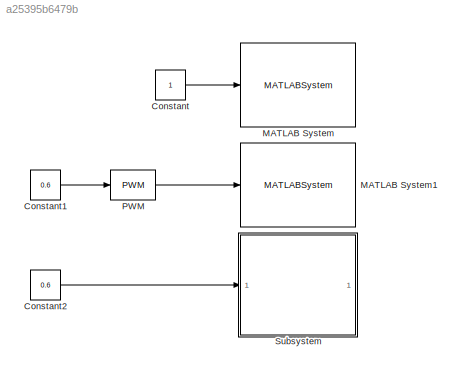
MODEL slx_a25395b6479b
KIND model
CONFIG AbsTol = auto
CONFIG EnableMultiTasking = off
CONFIG FixedStep = auto
CONFIG MaxStep = auto
CONFIG MinStep = auto
CONFIG RelTol = 1e-3
CONFIG SampleTimeConstraint = Unconstrained
CONFIG SolverName = FixedStepAuto
CONFIG StartTime = 0.0
CONFIG StopTime = inf
BLOCK [Constant] Constant
BLOCK [Constant] Constant1
  Value = 0.6
BLOCK [Constant] Constant2
  Value = 0.6
BLOCK [MATLABSystem] MATLAB System
  MaskDisplay = disp('GPIO_Write');\nport_label('input',1,'u');
  MaskType = GPIO_Write
  System = GPIO_Write
  gpioPin = 428
  pinDirection = 1
BLOCK [MATLABSystem] MATLAB System1
  MaskDisplay = disp('GPIO_Write');\nport_label('input',1,'u');
  MaskType = GPIO_Write
  System = GPIO_Write
  gpioPin = 445
  pinDirection = 1
BLOCK [Reference] PWM  REF=simulink/Discontinuities/PWM
  DisableCoverage = on
  SourceBlock = simulink/Discontinuities/PWM
  SourceType = PWM
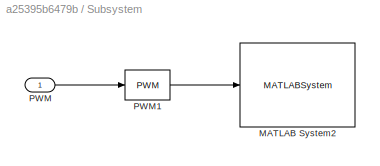
BLOCK [SubSystem] Subsystem
BLOCK [MATLABSystem] Subsystem/MATLAB System2
  MaskDisplay = disp('GPIO_Write');\nport_label('input',1,'u');
  MaskType = GPIO_Write
  System = GPIO_Write
  gpioPin = 480
  pinDirection = 1
BLOCK [Inport] Subsystem/PWM
BLOCK [Reference] Subsystem/PWM1  REF=simulink/Discontinuities/PWM
  DisableCoverage = on
  SourceBlock = simulink/Discontinuities/PWM
  SourceType = PWM
LINE Constant1:1 -> PWM:1
LINE Constant2:1 -> Subsystem:1
LINE Constant:1 -> MATLAB System:1
LINE PWM:1 -> MATLAB System1:1
LINE Subsystem/PWM1:1 -> Subsystem/MATLAB System2:1
LINE Subsystem/PWM:1 -> Subsystem/PWM1:1
